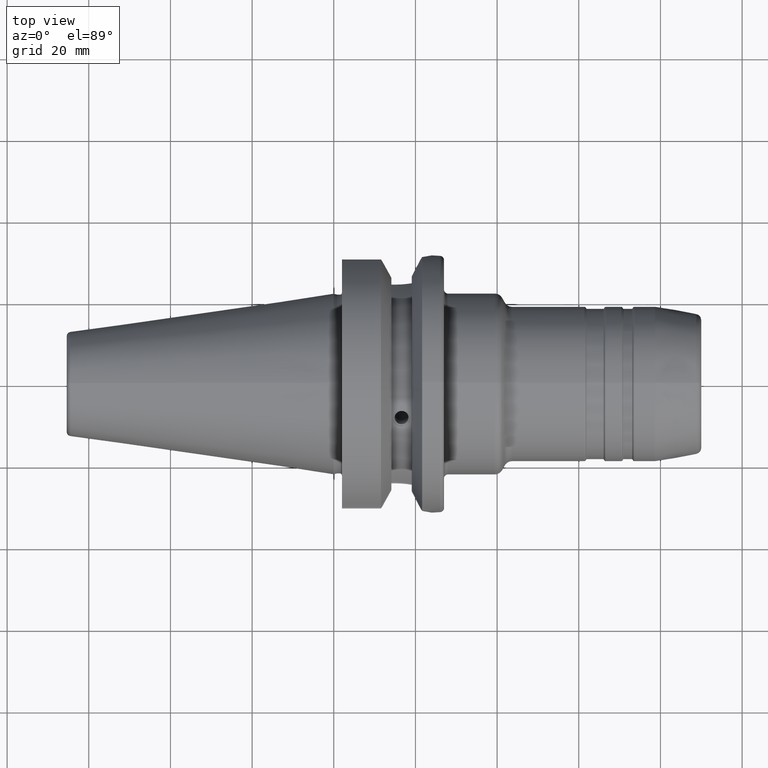
[diagram: clean part render]
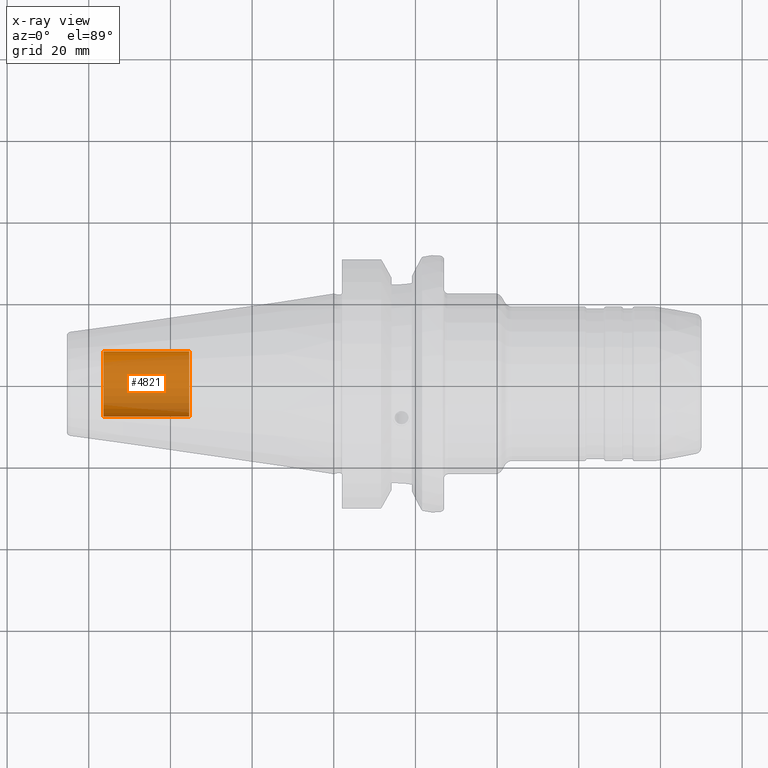
[diagram: x-ray — body ghosted, one internal face saturated and labeled with its STEP entity id]
A machine part, top view, then the same camera in x-ray: the body is ghosted and one INTERNAL B-rep face — a face not visible from any outside direction — is saturated and labeled: STEP entity #4821.
In plain terms, the highlighted cylindrical surface (edge-blend (fillet) strip) has radius 8 mm, axis along (-1, 0, 0).
Its self-contained STEP definition (entity closure, byte-faithful):
#4756=CARTESIAN_POINT('',(-5.64E1,0.E0,0.E0));
#4757=DIRECTION('',(1.E0,0.E0,0.E0));
#4758=DIRECTION('',(0.E0,-1.E0,0.E0));
#4759=AXIS2_PLACEMENT_3D('',#4756,#4757,#4758);
#4766=DIRECTION('',(1.E0,0.E0,0.E0));
#4767=VECTOR('',#4766,2.1E1);
#4768=CARTESIAN_POINT('',(-5.64E1,-8.E0,0.E0));
#4769=LINE('',#4768,#4767);
#4770=DIRECTION('',(1.E0,0.E0,0.E0));
#4771=VECTOR('',#4770,2.1E1);
#4772=CARTESIAN_POINT('',(-5.64E1,8.E0,0.E0));
#4773=LINE('',#4772,#4771);
#4779=CARTESIAN_POINT('',(-3.54E1,0.E0,0.E0));
#4780=DIRECTION('',(-1.E0,0.E0,0.E0));
#4781=DIRECTION('',(0.E0,1.E0,0.E0));
#4782=AXIS2_PLACEMENT_3D('',#4779,#4780,#4781);
#4794=CARTESIAN_POINT('',(-3.54E1,8.E0,0.E0));
#4795=CARTESIAN_POINT('',(-3.54E1,-8.E0,0.E0));
#4796=VERTEX_POINT('',#4794);
#4797=VERTEX_POINT('',#4795);
#4798=CARTESIAN_POINT('',(-5.64E1,8.E0,0.E0));
#4799=CARTESIAN_POINT('',(-5.64E1,-8.E0,0.E0));
#4800=VERTEX_POINT('',#4798);
#4801=VERTEX_POINT('',#4799);
#4806=CARTESIAN_POINT('',(-1.373367445015E1,0.E0,0.E0));
#4807=DIRECTION('',(-1.E0,0.E0,0.E0));
#4808=DIRECTION('',(0.E0,1.E0,0.E0));
#4809=AXIS2_PLACEMENT_3D('',#4806,#4807,#4808);
#4810=CYLINDRICAL_SURFACE('',#4809,8.E0);
#4812=ORIENTED_EDGE('',*,*,#4811,.T.);
#4814=ORIENTED_EDGE('',*,*,#4813,.T.);
#4816=ORIENTED_EDGE('',*,*,#4815,.T.);
#4818=ORIENTED_EDGE('',*,*,#4817,.F.);
#4819=EDGE_LOOP('',(#4812,#4814,#4816,#4818));
#4820=FACE_OUTER_BOUND('',#4819,.F.);
#4821=ADVANCED_FACE('',(#4820),#4810,.F.);
#4760=CIRCLE('',#4759,8.E0);
#4783=CIRCLE('',#4782,8.E0);
#4811=EDGE_CURVE('',#4801,#4800,#4760,.T.);
#4813=EDGE_CURVE('',#4800,#4796,#4773,.T.);
#4815=EDGE_CURVE('',#4796,#4797,#4783,.T.);
#4817=EDGE_CURVE('',#4801,#4797,#4769,.T.);